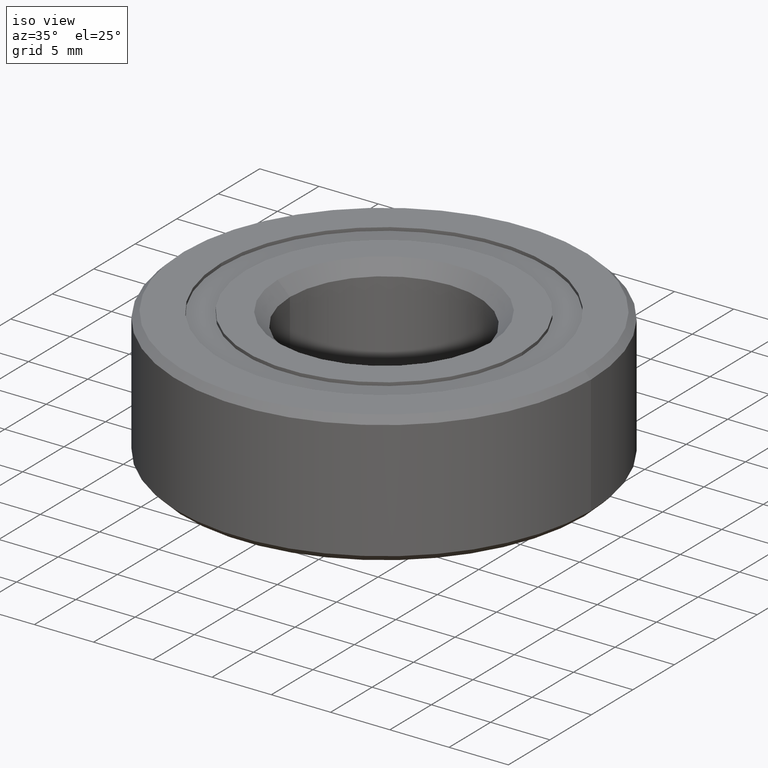
[diagram: clean part render]
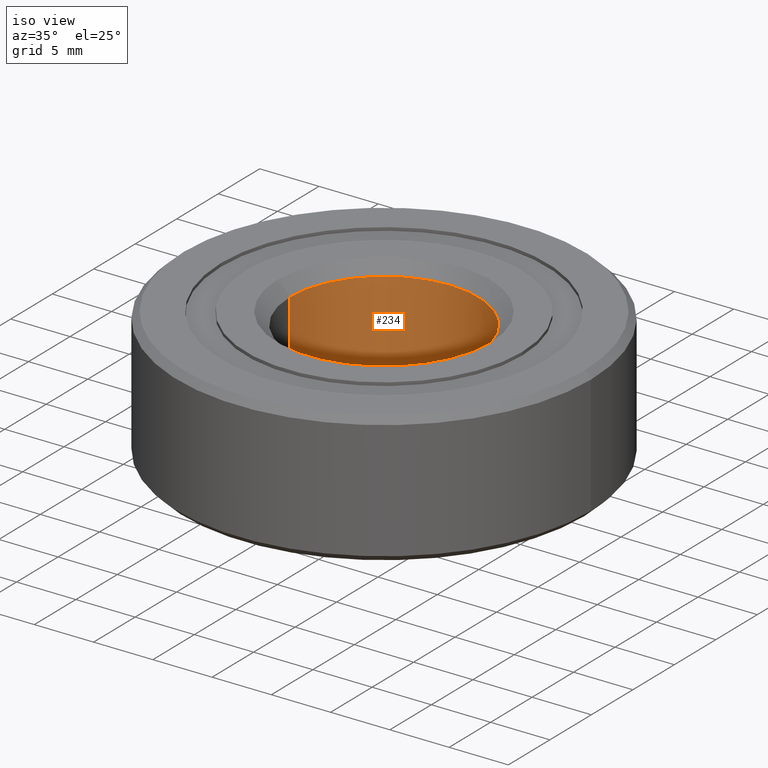
[diagram: same view with one face highlighted and labeled with its STEP entity id]
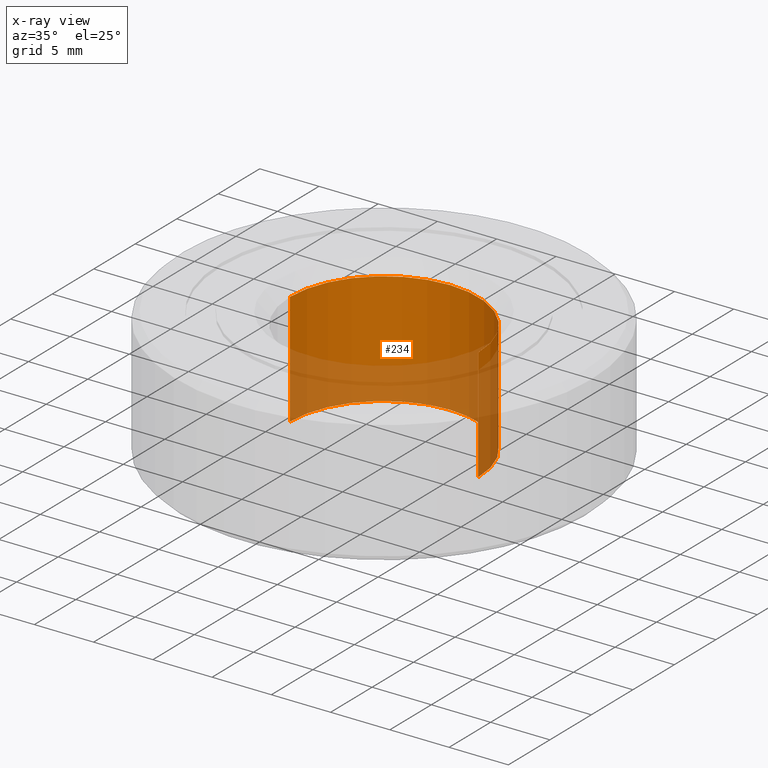
[diagram: x-ray of the same camera — body ghosted, the highlighted face saturated]
A machine part, iso view. The second image highlights one B-rep face of the part: STEP entity #234.
The next image is the same camera in x-ray: the body ghosted, the highlighted face saturated — about 41% of this face is hidden behind the body in this view.
In plain terms, the highlighted cylindrical surface (partial cylindrical patch) has radius 7.9375 mm, axis along (-0, -0, 1).
Its self-contained STEP definition (entity closure, byte-faithful):
#217 = CARTESIAN_POINT ( 'NONE',  ( -0.3125000000000000000, 3.827021247335478926E-17, 0.1777975495802527894 ) ) ;
#234 = ADVANCED_FACE ( 'NONE', ( #455 ), #834, .F. ) ;
#236 = DIRECTION ( 'NONE',  ( 1.000000000000000000, 0.0000000000000000000, 0.0000000000000000000 ) ) ;
#329 = ORIENTED_EDGE ( 'NONE', *, *, #1351, .F. ) ;
#419 = CIRCLE ( 'NONE', #1127, 0.3125000000000000000 ) ;
#446 = VERTEX_POINT ( 'NONE', #1182 ) ;
#455 = FACE_OUTER_BOUND ( 'NONE', #2312, .T. ) ;
#508 = CARTESIAN_POINT ( 'NONE',  ( 0.0000000000000000000, 0.0000000000000000000, 0.1777975495802527894 ) ) ;
#542 = DIRECTION ( 'NONE',  ( -0.0000000000000000000, -0.0000000000000000000, 1.000000000000000000 ) ) ;
#567 = DIRECTION ( 'NONE',  ( -0.0000000000000000000, -0.0000000000000000000, 1.000000000000000000 ) ) ;
#685 = VERTEX_POINT ( 'NONE', #1411 ) ;
#760 = EDGE_CURVE ( 'NONE', #961, #1118, #1320, .T. ) ;
#834 = CYLINDRICAL_SURFACE ( 'NONE', #1770, 0.3125000000000000000 ) ;
#917 = EDGE_CURVE ( 'NONE', #685, #1118, #1930, .T. ) ;
#961 = VERTEX_POINT ( 'NONE', #1457 ) ;
#981 = VECTOR ( 'NONE', #542, 39.37007874015748143 ) ;
#1118 = VERTEX_POINT ( 'NONE', #217 ) ;
#1127 = AXIS2_PLACEMENT_3D ( 'NONE', #1833, #567, #2200 ) ;
#1182 = CARTESIAN_POINT ( 'NONE',  ( 0.3125000000000000000, 3.960966990992220002E-17, -0.1968750000000001610 ) ) ;
#1297 = CARTESIAN_POINT ( 'NONE',  ( 0.3125000000000000000, 0.0000000000000000000, 0.2187500000000000000 ) ) ;
#1304 = DIRECTION ( 'NONE',  ( -0.0000000000000000000, -0.0000000000000000000, 1.000000000000000000 ) ) ;
#1320 = CIRCLE ( 'NONE', #1323, 0.3125000000000000000 ) ;
#1323 = AXIS2_PLACEMENT_3D ( 'NONE', #508, #2170, #1917 ) ;
#1334 = CARTESIAN_POINT ( 'NONE',  ( 0.0000000000000000000, 0.0000000000000000000, 0.2187500000000000000 ) ) ;
#1351 = EDGE_CURVE ( 'NONE', #446, #685, #419, .T. ) ;
#1411 = CARTESIAN_POINT ( 'NONE',  ( -0.3125000000000000000, 0.0000000000000000000, -0.1968750000000001610 ) ) ;
#1457 = CARTESIAN_POINT ( 'NONE',  ( 0.3125000000000000000, 0.0000000000000000000, 0.1777975495802527894 ) ) ;
#1498 = ORIENTED_EDGE ( 'NONE', *, *, #2342, .T. ) ;
#1711 = VECTOR ( 'NONE', #1304, 39.37007874015748143 ) ;
#1767 = CARTESIAN_POINT ( 'NONE',  ( -0.3125000000000000000, 3.827021247335478926E-17, 0.2187500000000000000 ) ) ;
#1770 = AXIS2_PLACEMENT_3D ( 'NONE', #1334, #2095, #236 ) ;
#1833 = CARTESIAN_POINT ( 'NONE',  ( 0.0000000000000000000, 0.0000000000000000000, -0.1968750000000001610 ) ) ;
#1917 = DIRECTION ( 'NONE',  ( 1.000000000000000000, 0.0000000000000000000, 0.0000000000000000000 ) ) ;
#1930 = LINE ( 'NONE', #1767, #981 ) ;
#2054 = ORIENTED_EDGE ( 'NONE', *, *, #917, .F. ) ;
#2095 = DIRECTION ( 'NONE',  ( -0.0000000000000000000, -0.0000000000000000000, 1.000000000000000000 ) ) ;
#2170 = DIRECTION ( 'NONE',  ( -0.0000000000000000000, -0.0000000000000000000, 1.000000000000000000 ) ) ;
#2200 = DIRECTION ( 'NONE',  ( 1.000000000000000000, 0.0000000000000000000, 0.0000000000000000000 ) ) ;
#2218 = LINE ( 'NONE', #1297, #1711 ) ;
#2245 = ORIENTED_EDGE ( 'NONE', *, *, #760, .T. ) ;
#2312 = EDGE_LOOP ( 'NONE', ( #2054, #329, #1498, #2245 ) ) ;
#2342 = EDGE_CURVE ( 'NONE', #446, #961, #2218, .T. ) ;